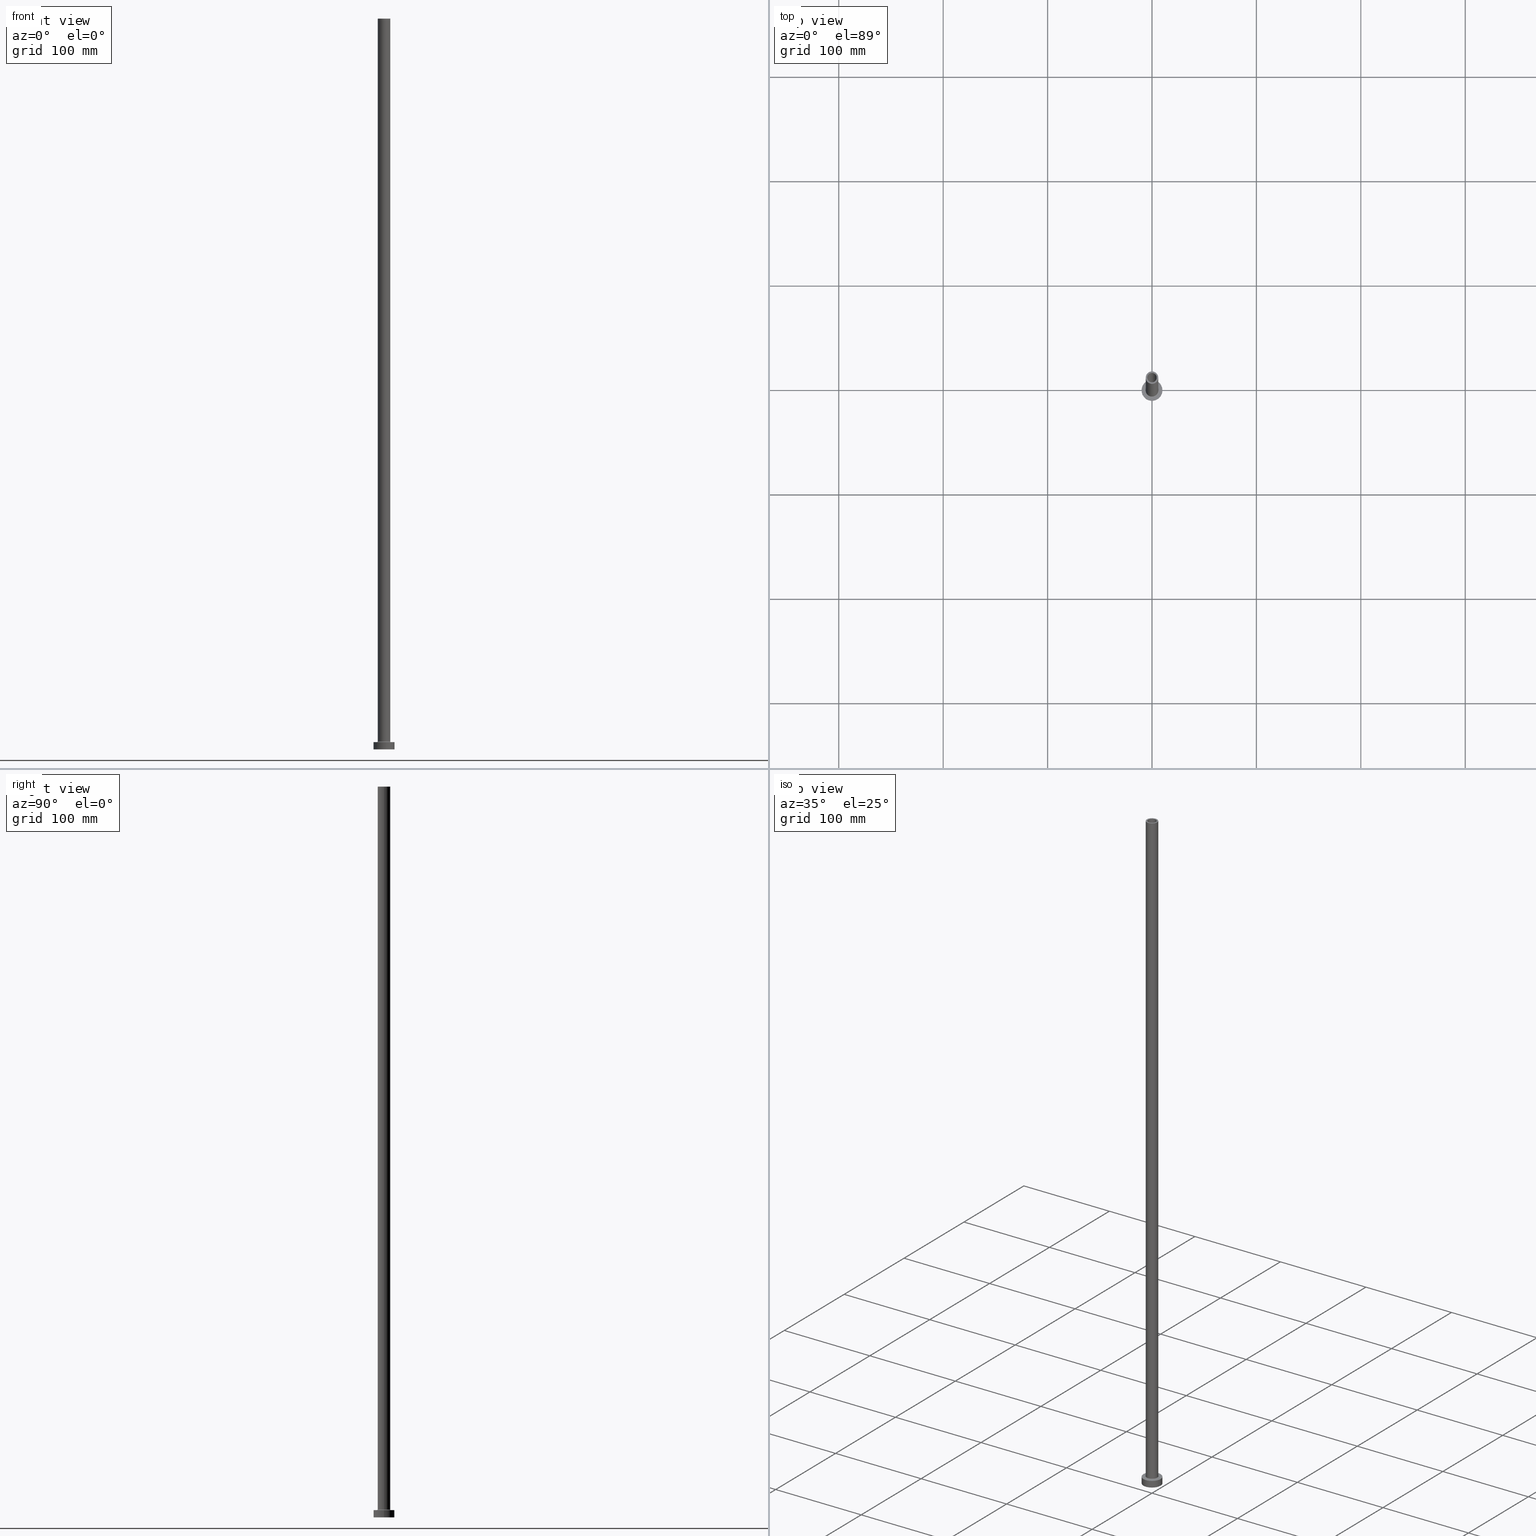
[diagram: canonical four-view strip — front | top / right | iso, engineering-drawing reading convention]
A machine part, canonical four-view strip (front | top / right | iso — engineering-drawing reading convention). The complete STEP part file that produces these views, byte-faithful:
ISO-10303-21;
HEADER;
FILE_DESCRIPTION (( 'STEP AP203' ),
    '1' );
FILE_NAME ('c456.STEP',
    '2023-02-13T10:59:47',
    ( '' ),
    ( '' ),
    'SwSTEP 2.0',
    'SolidWorks 2019',
    '' );
FILE_SCHEMA (( 'CONFIG_CONTROL_DESIGN' ));
ENDSEC;

DATA;
#1 = DIRECTION ( 'NONE',  ( 1.000000000000000000, 0.000000000000000000, 0.000000000000000000 ) ) ;
#2 = CARTESIAN_POINT ( 'NONE',  ( 4.500000000000000000, 5.510910596163088569E-16, 700.0000000000000000 ) ) ;
#3 = DIRECTION ( 'NONE',  ( -0.000000000000000000, -0.000000000000000000, -1.000000000000000000 ) ) ;
#4 = EDGE_CURVE ( 'NONE', #301, #63, #240, .T. ) ;
#5 = AXIS2_PLACEMENT_3D ( 'NONE', #284, #193, #335 ) ;
#6 = LINE ( 'NONE', #119, #61 ) ;
#7 = ORIENTED_EDGE ( 'NONE', *, *, #35, .F. ) ;
#8 = DIRECTION ( 'NONE',  ( 1.000000000000000000, 0.000000000000000000, 0.000000000000000000 ) ) ;
#9 = CARTESIAN_POINT ( 'NONE',  ( 0.000000000000000000, 0.000000000000000000, 654.9999999999998863 ) ) ;
#10 = CARTESIAN_POINT ( 'NONE',  ( 6.700000000000001066, 0.000000000000000000, 7.700000000000040146 ) ) ;
#11 = EDGE_CURVE ( 'NONE', #247, #176, #39, .T. ) ;
#12 = DIRECTION ( 'NONE',  ( 0.000000000000000000, 0.000000000000000000, 1.000000000000000000 ) ) ;
#13 = ORIENTED_EDGE ( 'NONE', *, *, #25, .F. ) ;
#14 = APPROVAL_ROLE ( '' ) ;
#15 = DIRECTION ( 'NONE',  ( 1.000000000000000000, 0.000000000000000000, 0.000000000000000000 ) ) ;
#16 = ORIENTED_EDGE ( 'NONE', *, *, #4, .T. ) ;
#17 = CARTESIAN_POINT ( 'NONE',  ( 6.000000000000000888, 7.347880794884120722E-16, 700.0000000000000000 ) ) ;
#18 = CC_DESIGN_PERSON_AND_ORGANIZATION_ASSIGNMENT ( #455, #67, ( #175 ) ) ;
#19 = AXIS2_PLACEMENT_3D ( 'NONE', #44, #252, #184 ) ;
#20 = CARTESIAN_POINT ( 'NONE',  ( 0.000000000000000000, 0.000000000000000000, 0.000000000000000000 ) ) ;
#21 = ORGANIZATION ( 'NEUR�EN�', 'NEUR�EN�', '' ) ;
#22 = ORIENTED_EDGE ( 'NONE', *, *, #436, .T. ) ;
#23 = ORIENTED_EDGE ( 'NONE', *, *, #308, .T. ) ;
#24 = DATE_TIME_ROLE ( 'creation_date' ) ;
#25 = EDGE_CURVE ( 'NONE', #176, #247, #302, .T. ) ;
#26 = ORIENTED_EDGE ( 'NONE', *, *, #460, .F. ) ;
#27 = APPROVAL_ROLE ( '' ) ;
#28 = CIRCLE ( 'NONE', #225, 6.000000000000000888 ) ;
#29 = ORIENTED_EDGE ( 'NONE', *, *, #153, .T. ) ;
#30 = CC_DESIGN_SECURITY_CLASSIFICATION ( #351, ( #175 ) ) ;
#31 = PERSON_AND_ORGANIZATION ( #55, #21 ) ;
#32 = CARTESIAN_POINT ( 'NONE',  ( 0.000000000000000000, 0.000000000000000000, 654.9999999999998863 ) ) ;
#33 = DIRECTION ( 'NONE',  ( -0.000000000000000000, -0.000000000000000000, -1.000000000000000000 ) ) ;
#34 = LINE ( 'NONE', #259, #257 ) ;
#35 = EDGE_CURVE ( 'NONE', #196, #382, #110, .T. ) ;
#36 = APPLICATION_CONTEXT ( 'configuration controlled 3d designs of mechanical parts and assemblies' ) ;
#37 = DESIGN_CONTEXT ( 'detailed design', #36, 'design' ) ;
#38 = CARTESIAN_POINT ( 'NONE',  ( 0.000000000000000000, 0.000000000000000000, 7.000000000000000000 ) ) ;
#39 = CIRCLE ( 'NONE', #450, 10.00000000000000000 ) ;
#40 = CC_DESIGN_APPROVAL ( #65, ( #94 ) ) ;
#41 = CARTESIAN_POINT ( 'NONE',  ( 0.000000000000000000, 0.000000000000000000, 7.000000000000000000 ) ) ;
#42 = CARTESIAN_POINT ( 'NONE',  ( 4.650000000000000355, 5.694607616035191883E-16, 668.1521861300698220 ) ) ;
#43 = UNCERTAINTY_MEASURE_WITH_UNIT (LENGTH_MEASURE( 1.000000000000000082E-05 ), #131, 'distance_accuracy_value', 'NONE');
#44 = CARTESIAN_POINT ( 'NONE',  ( 0.000000000000000000, 0.000000000000000000, 7.700000000000040146 ) ) ;
#45 = EDGE_CURVE ( 'NONE', #239, #231, #367, .T. ) ;
#46 = CIRCLE ( 'NONE', #118, 6.000000000000000888 ) ;
#47 = FACE_OUTER_BOUND ( 'NONE', #81, .T. ) ;
#48 = ORIENTED_EDGE ( 'NONE', *, *, #288, .T. ) ;
#49 = PERSON_AND_ORGANIZATION ( #55, #21 ) ;
#50 = CARTESIAN_POINT ( 'NONE',  ( 6.000000000000000888, 7.347880794884120722E-16, 7.700000000000040146 ) ) ;
#51 = ADVANCED_FACE ( 'NONE', ( #187, #393 ), #395, .F. ) ;
#52 = ORIENTED_EDGE ( 'NONE', *, *, #421, .F. ) ;
#53 = APPLICATION_PROTOCOL_DEFINITION ( 'international standard', 'config_control_design', 1994, #36 ) ;
#54 = CIRCLE ( 'NONE', #389, 6.000000000000000888 ) ;
#55 = PERSON ( 'NEUR�EN�', 'NEUR�EN�', 'NEUR�EN�', ('NEUR�EN�'), ('NEUR�EN�'), ('NEUR�EN�') ) ;
#56 = EDGE_CURVE ( 'NONE', #268, #173, #72, .T. ) ;
#57 = CARTESIAN_POINT ( 'NONE',  ( 0.000000000000000000, 0.000000000000000000, 7.000000000000000000 ) ) ;
#58 = CARTESIAN_POINT ( 'NONE',  ( 0.000000000000000000, 0.000000000000000000, 700.0000000000000000 ) ) ;
#59 = VERTEX_POINT ( 'NONE', #394 ) ;
#60 = CYLINDRICAL_SURFACE ( 'NONE', #183, 4.500000000000000000 ) ;
#61 = VECTOR ( 'NONE', #188, 1000.000000000000000 ) ;
#62 = ORIENTED_EDGE ( 'NONE', *, *, #177, .F. ) ;
#63 = VERTEX_POINT ( 'NONE', #365 ) ;
#64 = APPROVAL_DATE_TIME ( #384, #65 ) ;
#65 = APPROVAL ( #441, 'NEUR�EN�' ) ;
#66 = ORIENTED_EDGE ( 'NONE', *, *, #273, .F. ) ;
#67 = PERSON_AND_ORGANIZATION_ROLE ( 'creator' ) ;
#68 = AXIS2_PLACEMENT_3D ( 'NONE', #428, #115, #255 ) ;
#69 = DIRECTION ( 'NONE',  ( -0.000000000000000000, -0.000000000000000000, -1.000000000000000000 ) ) ;
#70 = PERSON_AND_ORGANIZATION_ROLE ( 'classification_officer' ) ;
#71 = CARTESIAN_POINT ( 'NONE',  ( 0.000000000000000000, 0.000000000000000000, 7.000000000000000000 ) ) ;
#72 = LINE ( 'NONE', #76, #167 ) ;
#73 = EDGE_CURVE ( 'NONE', #245, #235, #93, .T. ) ;
#74 = DIRECTION ( 'NONE',  ( 0.000000000000000000, 0.000000000000000000, 1.000000000000000000 ) ) ;
#75 = DIRECTION ( 'NONE',  ( 1.000000000000000000, 0.000000000000000000, 0.000000000000000000 ) ) ;
#76 = CARTESIAN_POINT ( 'NONE',  ( -4.500000000000000000, 0.000000000000000000, 700.0000000000000000 ) ) ;
#77 = AXIS2_PLACEMENT_3D ( 'NONE', #121, #293, #461 ) ;
#78 = CARTESIAN_POINT ( 'NONE',  ( -10.00000000000000000, 0.000000000000000000, 7.000000000000000000 ) ) ;
#79 = CARTESIAN_POINT ( 'NONE',  ( 0.000000000000000000, 0.000000000000000000, 7.000000000000000000 ) ) ;
#80 = CARTESIAN_POINT ( 'NONE',  ( -4.650000000000000355, 0.000000000000000000, 654.9999999999998863 ) ) ;
#81 = EDGE_LOOP ( 'NONE', ( #369, #356, #144, #320 ) ) ;
#82 = AXIS2_PLACEMENT_3D ( 'NONE', #263, #398, #332 ) ;
#83 = CIRCLE ( 'NONE', #82, 4.500000000000000000 ) ;
#84 = DIRECTION ( 'NONE',  ( 0.000000000000000000, 0.000000000000000000, 1.000000000000000000 ) ) ;
#85 = APPROVAL_PERSON_ORGANIZATION ( #453, #244, #27 ) ;
#86 = EDGE_LOOP ( 'NONE', ( #213, #314 ) ) ;
#87 = EDGE_CURVE ( 'NONE', #349, #353, #424, .T. ) ;
#88 = DIRECTION ( 'NONE',  ( 1.000000000000000000, 0.000000000000000000, -0.000000000000000000 ) ) ;
#89 = CARTESIAN_POINT ( 'NONE',  ( 0.000000000000000000, 0.000000000000000000, 700.0000000000000000 ) ) ;
#90 = PERSON_AND_ORGANIZATION_ROLE ( 'design_owner' ) ;
#91 = EDGE_LOOP ( 'NONE', ( #106, #226 ) ) ;
#92 = FACE_BOUND ( 'NONE', #243, .T. ) ;
#93 = CIRCLE ( 'NONE', #432, 6.700000000000001066 ) ;
#94 = PRODUCT_DEFINITION ( 'NEZN�M�', '', #175, #37 ) ;
#95 = FACE_OUTER_BOUND ( 'NONE', #200, .T. ) ;
#96 = ORIENTED_EDGE ( 'NONE', *, *, #45, .F. ) ;
#97 = APPROVAL_DATE_TIME ( #197, #138 ) ;
#98 = PLANE ( 'NONE',  #286 ) ;
#99 = ORIENTED_EDGE ( 'NONE', *, *, #170, .T. ) ;
#100 = PLANE ( 'NONE',  #227 ) ;
#101 = DIRECTION ( 'NONE',  ( -0.000000000000000000, -0.000000000000000000, -1.000000000000000000 ) ) ;
#102 = EDGE_LOOP ( 'NONE', ( #16, #99 ) ) ;
#103 = AXIS2_PLACEMENT_3D ( 'NONE', #249, #285, #209 ) ;
#104 = LOCAL_TIME ( 11, 59, 47.00000000000000000, #192 ) ;
#105 = ORIENTED_EDGE ( 'NONE', *, *, #73, .T. ) ;
#106 = ORIENTED_EDGE ( 'NONE', *, *, #429, .T. ) ;
#107 = EDGE_LOOP ( 'NONE', ( #422, #206 ) ) ;
#108 = SECURITY_CLASSIFICATION_LEVEL ( 'unclassified' ) ;
#109 = ADVANCED_FACE ( 'NONE', ( #253 ), #218, .T. ) ;
#110 = CIRCLE ( 'NONE', #19, 6.000000000000000888 ) ;
#111 = DIRECTION ( 'NONE',  ( 0.000000000000000000, 0.000000000000000000, 1.000000000000000000 ) ) ;
#112 = AXIS2_PLACEMENT_3D ( 'NONE', #267, #407, #161 ) ;
#113 = DIRECTION ( 'NONE',  ( 0.000000000000000000, 0.000000000000000000, 1.000000000000000000 ) ) ;
#114 = DIRECTION ( 'NONE',  ( 1.000000000000000000, 0.000000000000000000, 0.000000000000000000 ) ) ;
#115 = DIRECTION ( 'NONE',  ( -0.000000000000000000, -0.000000000000000000, -1.000000000000000000 ) ) ;
#116 = DIRECTION ( 'NONE',  ( -1.000000000000000000, 1.224646799147353454E-16, 0.000000000000000000 ) ) ;
#117 = CARTESIAN_POINT ( 'NONE',  ( 0.000000000000000000, 0.000000000000000000, 654.9999999999998863 ) ) ;
#118 = AXIS2_PLACEMENT_3D ( 'NONE', #290, #430, #8 ) ;
#119 = CARTESIAN_POINT ( 'NONE',  ( -10.00000000000000000, 0.000000000000000000, 7.000000000000000000 ) ) ;
#120 = PRODUCT ( 'c456', 'c456', '', ( #339 ) ) ;
#121 = CARTESIAN_POINT ( 'NONE',  ( 0.000000000000000000, 0.000000000000000000, 654.9999999999998863 ) ) ;
#122 = ORIENTED_EDGE ( 'NONE', *, *, #323, .F. ) ;
#123 = CARTESIAN_POINT ( 'NONE',  ( -4.650000000000000355, 0.000000000000000000, 668.1521861300698220 ) ) ;
#124 = EDGE_CURVE ( 'NONE', #139, #196, #34, .T. ) ;
#125 = TOROIDAL_SURFACE ( 'NONE', #404, 6.700000000000001066, 0.6999999999999999556 ) ;
#126 = PERSON_AND_ORGANIZATION ( #55, #21 ) ;
#127 = APPROVAL_ROLE ( '' ) ;
#128 = EDGE_CURVE ( 'NONE', #447, #173, #250, .T. ) ;
#129 = DIRECTION ( 'NONE',  ( -1.000000000000000000, 0.000000000000000000, 0.000000000000000000 ) ) ;
#130 = EDGE_LOOP ( 'NONE', ( #29, #316, #420, #163 ) ) ;
#131 =( LENGTH_UNIT ( ) NAMED_UNIT ( * ) SI_UNIT ( .MILLI., .METRE. ) );
#132 = AXIS2_PLACEMENT_3D ( 'NONE', #20, #101, #205 ) ;
#133 = DIRECTION ( 'NONE',  ( 1.000000000000000000, 0.000000000000000000, 0.000000000000000000 ) ) ;
#134 = ORIENTED_EDGE ( 'NONE', *, *, #460, .T. ) ;
#135 = DIRECTION ( 'NONE',  ( -1.000000000000000000, 0.000000000000000000, 0.000000000000000000 ) ) ;
#136 = ORIENTED_EDGE ( 'NONE', *, *, #212, .T. ) ;
#137 = COORDINATED_UNIVERSAL_TIME_OFFSET ( 1, 0, .AHEAD. ) ;
#138 = APPROVAL ( #338, 'NEUR�EN�' ) ;
#139 = VERTEX_POINT ( 'NONE', #152 ) ;
#140 = CLOSED_SHELL ( 'NONE', ( #294, #341, #230, #186, #417, #109, #237, #445, #254, #223, #371, #266, #51, #397 ) ) ;
#141 = AXIS2_PLACEMENT_3D ( 'NONE', #9, #201, #15 ) ;
#142 = EDGE_LOOP ( 'NONE', ( #306, #345, #134, #159 ) ) ;
#143 = COORDINATED_UNIVERSAL_TIME_OFFSET ( 1, 0, .AHEAD. ) ;
#144 = ORIENTED_EDGE ( 'NONE', *, *, #56, .T. ) ;
#145 = CC_DESIGN_DATE_AND_TIME_ASSIGNMENT ( #402, #370, ( #351 ) ) ;
#146 = CARTESIAN_POINT ( 'NONE',  ( -6.000000000000000888, 0.000000000000000000, 7.700000000000040146 ) ) ;
#147 = FACE_BOUND ( 'NONE', #107, .T. ) ;
#148 = CARTESIAN_POINT ( 'NONE',  ( -4.500000000000000000, 0.000000000000000000, 654.9999999999998863 ) ) ;
#149 = LOCAL_TIME ( 11, 59, 47.00000000000000000, #137 ) ;
#150 = DIRECTION ( 'NONE',  ( 1.000000000000000000, 0.000000000000000000, 0.000000000000000000 ) ) ;
#151 = CYLINDRICAL_SURFACE ( 'NONE', #375, 4.500000000000000000 ) ;
#152 = CARTESIAN_POINT ( 'NONE',  ( -6.000000000000000888, 0.000000000000000000, 700.0000000000000000 ) ) ;
#153 = EDGE_CURVE ( 'NONE', #353, #349, #220, .T. ) ;
#154 = DIRECTION ( 'NONE',  ( 0.000000000000000000, 0.000000000000000000, -1.000000000000000000 ) ) ;
#155 = DIRECTION ( 'NONE',  ( 0.000000000000000000, 0.000000000000000000, 1.000000000000000000 ) ) ;
#156 = AXIS2_PLACEMENT_3D ( 'NONE', #325, #360, #427 ) ;
#157 = LOCAL_TIME ( 11, 59, 47.00000000000000000, #354 ) ;
#158 = FACE_OUTER_BOUND ( 'NONE', #142, .T. ) ;
#159 = ORIENTED_EDGE ( 'NONE', *, *, #73, .F. ) ;
#160 = CARTESIAN_POINT ( 'NONE',  ( -6.700000000000001066, 8.205133554287267548E-16, 7.700000000000040146 ) ) ;
#161 = DIRECTION ( 'NONE',  ( -1.000000000000000000, 0.000000000000000000, 0.000000000000000000 ) ) ;
#162 =( NAMED_UNIT ( * ) SI_UNIT ( $, .STERADIAN. ) SOLID_ANGLE_UNIT ( ) );
#163 = ORIENTED_EDGE ( 'NONE', *, *, #317, .F. ) ;
#164 = CARTESIAN_POINT ( 'NONE',  ( 4.500000000000000000, 5.510910596163088569E-16, 654.9999999999998863 ) ) ;
#165 = CARTESIAN_POINT ( 'NONE',  ( -4.650000000000000355, 0.000000000000000000, 0.000000000000000000 ) ) ;
#166 = ORIENTED_EDGE ( 'NONE', *, *, #436, .F. ) ;
#167 = VECTOR ( 'NONE', #221, 1000.000000000000000 ) ;
#168 = DIRECTION ( 'NONE',  ( 0.000000000000000000, 0.000000000000000000, -1.000000000000000000 ) ) ;
#169 = ORIENTED_EDGE ( 'NONE', *, *, #124, .F. ) ;
#170 = EDGE_CURVE ( 'NONE', #63, #301, #190, .T. ) ;
#171 = ORIENTED_EDGE ( 'NONE', *, *, #261, .T. ) ;
#172 = PERSON_AND_ORGANIZATION_ROLE ( 'creator' ) ;
#173 = VERTEX_POINT ( 'NONE', #148 ) ;
#174 = AXIS2_PLACEMENT_3D ( 'NONE', #160, #292, #116 ) ;
#175 = PRODUCT_DEFINITION_FORMATION_WITH_SPECIFIED_SOURCE ( 'LIBOVOLN�', '', #120, .NOT_KNOWN. ) ;
#176 = VERTEX_POINT ( 'NONE', #434 ) ;
#177 = EDGE_CURVE ( 'NONE', #235, #245, #319, .T. ) ;
#178 = CARTESIAN_POINT ( 'NONE',  ( 0.000000000000000000, 0.000000000000000000, 7.700000000000040146 ) ) ;
#179 = DATE_AND_TIME ( #248, #157 ) ;
#180 = FACE_OUTER_BOUND ( 'NONE', #310, .T. ) ;
#181 = DIRECTION ( 'NONE',  ( 0.000000000000000000, 0.000000000000000000, 1.000000000000000000 ) ) ;
#182 = CARTESIAN_POINT ( 'NONE',  ( 6.700000000000001066, 0.000000000000000000, 7.000000000000020428 ) ) ;
#183 = AXIS2_PLACEMENT_3D ( 'NONE', #304, #346, #135 ) ;
#184 = DIRECTION ( 'NONE',  ( 1.000000000000000000, 0.000000000000000000, 0.000000000000000000 ) ) ;
#185 = DIRECTION ( 'NONE',  ( 0.000000000000000000, 0.000000000000000000, -1.000000000000000000 ) ) ;
#186 = ADVANCED_FACE ( 'NONE', ( #216 ), #291, .T. ) ;
#187 = FACE_BOUND ( 'NONE', #91, .T. ) ;
#188 = DIRECTION ( 'NONE',  ( -0.000000000000000000, -0.000000000000000000, -1.000000000000000000 ) ) ;
#189 = CARTESIAN_POINT ( 'NONE',  ( 0.000000000000000000, 0.000000000000000000, 7.000000000000000000 ) ) ;
#190 = CIRCLE ( 'NONE', #439, 10.00000000000000000 ) ;
#191 = EDGE_CURVE ( 'NONE', #382, #196, #28, .T. ) ;
#192 = COORDINATED_UNIVERSAL_TIME_OFFSET ( 1, 0, .AHEAD. ) ;
#193 = DIRECTION ( 'NONE',  ( 0.000000000000000000, 0.000000000000000000, 1.000000000000000000 ) ) ;
#194 = APPLICATION_PROTOCOL_DEFINITION ( 'international standard', 'config_control_design', 1994, #278 ) ;
#195 = PRODUCT_RELATED_PRODUCT_CATEGORY ( 'detail', '', ( #120 ) ) ;
#196 = VERTEX_POINT ( 'NONE', #146 ) ;
#197 = DATE_AND_TIME ( #373, #104 ) ;
#198 = AXIS2_PLACEMENT_3D ( 'NONE', #117, #155, #114 ) ;
#199 =( NAMED_UNIT ( * ) PLANE_ANGLE_UNIT ( ) SI_UNIT ( $, .RADIAN. ) );
#200 = EDGE_LOOP ( 'NONE', ( #7, #23, #62, #26 ) ) ;
#201 = DIRECTION ( 'NONE',  ( 0.000000000000000000, 0.000000000000000000, 1.000000000000000000 ) ) ;
#202 = PLANE ( 'NONE',  #103 ) ;
#203 = DIRECTION ( 'NONE',  ( 0.000000000000000000, 0.000000000000000000, 1.000000000000000000 ) ) ;
#204 = FACE_OUTER_BOUND ( 'NONE', #408, .T. ) ;
#205 = DIRECTION ( 'NONE',  ( 1.000000000000000000, 0.000000000000000000, 0.000000000000000000 ) ) ;
#206 = ORIENTED_EDGE ( 'NONE', *, *, #208, .F. ) ;
#207 = AXIS2_PLACEMENT_3D ( 'NONE', #32, #181, #1 ) ;
#208 = EDGE_CURVE ( 'NONE', #357, #268, #214, .T. ) ;
#209 = DIRECTION ( 'NONE',  ( 1.000000000000000000, 0.000000000000000000, -0.000000000000000000 ) ) ;
#210 = ORIENTED_EDGE ( 'NONE', *, *, #191, .T. ) ;
#211 = ORIENTED_EDGE ( 'NONE', *, *, #11, .T. ) ;
#212 = EDGE_CURVE ( 'NONE', #59, #139, #54, .T. ) ;
#213 = ORIENTED_EDGE ( 'NONE', *, *, #153, .F. ) ;
#214 = CIRCLE ( 'NONE', #5, 4.500000000000000000 ) ;
#215 = CC_DESIGN_APPROVAL ( #244, ( #175 ) ) ;
#216 = FACE_OUTER_BOUND ( 'NONE', #419, .T. ) ;
#217 = DIRECTION ( 'NONE',  ( 1.000000000000000000, 0.000000000000000000, 0.000000000000000000 ) ) ;
#218 = CYLINDRICAL_SURFACE ( 'NONE', #232, 10.00000000000000000 ) ;
#219 = CC_DESIGN_PERSON_AND_ORGANIZATION_ASSIGNMENT ( #448, #277, ( #175 ) ) ;
#220 = CIRCLE ( 'NONE', #77, 4.650000000000000355 ) ;
#221 = DIRECTION ( 'NONE',  ( 0.000000000000000000, 0.000000000000000000, -1.000000000000000000 ) ) ;
#222 = CARTESIAN_POINT ( 'NONE',  ( 4.500000000000000000, 5.510910596163088569E-16, 700.0000000000000000 ) ) ;
#223 = ADVANCED_FACE ( 'NONE', ( #147, #414 ), #202, .T. ) ;
#224 = LINE ( 'NONE', #2, #348 ) ;
#225 = AXIS2_PLACEMENT_3D ( 'NONE', #178, #321, #454 ) ;
#226 = ORIENTED_EDGE ( 'NONE', *, *, #128, .T. ) ;
#227 = AXIS2_PLACEMENT_3D ( 'NONE', #416, #12, #88 ) ;
#228 = DIRECTION ( 'NONE',  ( -1.000000000000000000, 0.000000000000000000, 0.000000000000000000 ) ) ;
#229 = CARTESIAN_POINT ( 'NONE',  ( 0.000000000000000000, 0.000000000000000000, 0.000000000000000000 ) ) ;
#230 = ADVANCED_FACE ( 'NONE', ( #95 ), #340, .F. ) ;
#231 = VERTEX_POINT ( 'NONE', #165 ) ;
#232 = AXIS2_PLACEMENT_3D ( 'NONE', #41, #362, #361 ) ;
#233 = APPROVAL_PERSON_ORGANIZATION ( #49, #138, #14 ) ;
#234 = FACE_OUTER_BOUND ( 'NONE', #383, .T. ) ;
#235 = VERTEX_POINT ( 'NONE', #182 ) ;
#236 = CARTESIAN_POINT ( 'NONE',  ( -10.00000000000000000, 0.000000000000000000, 0.000000000000000000 ) ) ;
#237 = ADVANCED_FACE ( 'NONE', ( #392, #380 ), #98, .T. ) ;
#238 = DIRECTION ( 'NONE',  ( 1.000000000000000000, 0.000000000000000000, 0.000000000000000000 ) ) ;
#239 = VERTEX_POINT ( 'NONE', #456 ) ;
#240 = CIRCLE ( 'NONE', #381, 10.00000000000000000 ) ;
#241 = CALENDAR_DATE ( 2023, 13, 2 ) ;
#242 = LOCAL_TIME ( 11, 59, 47.00000000000000000, #269 ) ;
#243 = EDGE_LOOP ( 'NONE', ( #449, #96 ) ) ;
#244 = APPROVAL ( #423, 'NEUR�EN�' ) ;
#245 = VERTEX_POINT ( 'NONE', #352 ) ;
#246 = CALENDAR_DATE ( 2023, 13, 2 ) ;
#247 = VERTEX_POINT ( 'NONE', #236 ) ;
#248 = CALENDAR_DATE ( 2023, 13, 2 ) ;
#249 = CARTESIAN_POINT ( 'NONE',  ( 0.000000000000000000, 0.000000000000000000, 700.0000000000000000 ) ) ;
#250 = CIRCLE ( 'NONE', #207, 4.500000000000000000 ) ;
#251 = AXIS2_PLACEMENT_3D ( 'NONE', #10, #307, #438 ) ;
#252 = DIRECTION ( 'NONE',  ( 0.000000000000000000, 0.000000000000000000, 1.000000000000000000 ) ) ;
#253 = FACE_OUTER_BOUND ( 'NONE', #336, .T. ) ;
#254 = ADVANCED_FACE ( 'NONE', ( #378 ), #446, .T. ) ;
#255 = DIRECTION ( 'NONE',  ( -1.000000000000000000, 0.000000000000000000, 0.000000000000000000 ) ) ;
#256 = DIRECTION ( 'NONE',  ( 0.000000000000000000, 0.000000000000000000, -1.000000000000000000 ) ) ;
#257 = VECTOR ( 'NONE', #399, 1000.000000000000000 ) ;
#258 = CIRCLE ( 'NONE', #251, 0.7000000000000000666 ) ;
#259 = CARTESIAN_POINT ( 'NONE',  ( -6.000000000000000888, 0.000000000000000000, 700.0000000000000000 ) ) ;
#260 = CARTESIAN_POINT ( 'NONE',  ( 0.000000000000000000, 0.000000000000000000, 668.1521861300698220 ) ) ;
#261 = EDGE_CURVE ( 'NONE', #231, #239, #280, .T. ) ;
#262 = CYLINDRICAL_SURFACE ( 'NONE', #326, 4.650000000000000355 ) ;
#263 = CARTESIAN_POINT ( 'NONE',  ( 0.000000000000000000, 0.000000000000000000, 700.0000000000000000 ) ) ;
#264 = CYLINDRICAL_SURFACE ( 'NONE', #112, 10.00000000000000000 ) ;
#265 = ORIENTED_EDGE ( 'NONE', *, *, #177, .T. ) ;
#266 = ADVANCED_FACE ( 'NONE', ( #180 ), #270, .F. ) ;
#267 = CARTESIAN_POINT ( 'NONE',  ( 0.000000000000000000, 0.000000000000000000, 7.000000000000000000 ) ) ;
#268 = VERTEX_POINT ( 'NONE', #426 ) ;
#269 = COORDINATED_UNIVERSAL_TIME_OFFSET ( 1, 0, .AHEAD. ) ;
#270 = CYLINDRICAL_SURFACE ( 'NONE', #442, 4.650000000000000355 ) ;
#271 = ORIENTED_EDGE ( 'NONE', *, *, #331, .T. ) ;
#272 = AXIS2_PLACEMENT_3D ( 'NONE', #344, #113, #315 ) ;
#273 = EDGE_CURVE ( 'NONE', #349, #239, #363, .T. ) ;
#274 = EDGE_LOOP ( 'NONE', ( #271, #342, #276, #405 ) ) ;
#275 = DIRECTION ( 'NONE',  ( -0.000000000000000000, -0.000000000000000000, -1.000000000000000000 ) ) ;
#276 = ORIENTED_EDGE ( 'NONE', *, *, #429, .F. ) ;
#277 = PERSON_AND_ORGANIZATION_ROLE ( 'design_supplier' ) ;
#278 = APPLICATION_CONTEXT ( 'configuration controlled 3d designs of mechanical parts and assemblies' ) ;
#279 = ORIENTED_EDGE ( 'NONE', *, *, #11, .F. ) ;
#280 = CIRCLE ( 'NONE', #132, 4.650000000000000355 ) ;
#281 = CC_DESIGN_APPROVAL ( #138, ( #351 ) ) ;
#282 = ORIENTED_EDGE ( 'NONE', *, *, #170, .F. ) ;
#283 = ORIENTED_EDGE ( 'NONE', *, *, #35, .T. ) ;
#284 = CARTESIAN_POINT ( 'NONE',  ( 0.000000000000000000, 0.000000000000000000, 700.0000000000000000 ) ) ;
#285 = DIRECTION ( 'NONE',  ( 0.000000000000000000, 0.000000000000000000, 1.000000000000000000 ) ) ;
#286 = AXIS2_PLACEMENT_3D ( 'NONE', #71, #309, #327 ) ;
#287 = APPROVAL_PERSON_ORGANIZATION ( #305, #65, #127 ) ;
#288 = EDGE_CURVE ( 'NONE', #139, #59, #46, .T. ) ;
#289 = CARTESIAN_POINT ( 'NONE',  ( 0.000000000000000000, 0.000000000000000000, 0.000000000000000000 ) ) ;
#290 = CARTESIAN_POINT ( 'NONE',  ( 0.000000000000000000, 0.000000000000000000, 700.0000000000000000 ) ) ;
#291 = CYLINDRICAL_SURFACE ( 'NONE', #68, 6.000000000000000888 ) ;
#292 = DIRECTION ( 'NONE',  ( 1.224646799147353207E-16, 1.000000000000000000, -0.000000000000000000 ) ) ;
#293 = DIRECTION ( 'NONE',  ( 0.000000000000000000, 0.000000000000000000, 1.000000000000000000 ) ) ;
#294 = ADVANCED_FACE ( 'NONE', ( #329 ), #151, .F. ) ;
#295 = FACE_OUTER_BOUND ( 'NONE', #130, .T. ) ;
#296 = AXIS2_PLACEMENT_3D ( 'NONE', #431, #111, #334 ) ;
#297 = DIRECTION ( 'NONE',  ( 1.000000000000000000, 0.000000000000000000, 0.000000000000000000 ) ) ;
#298 = LINE ( 'NONE', #123, #312 ) ;
#299 = ORIENTED_EDGE ( 'NONE', *, *, #124, .T. ) ;
#300 = DIRECTION ( 'NONE',  ( 0.000000000000000000, 0.000000000000000000, -1.000000000000000000 ) ) ;
#301 = VERTEX_POINT ( 'NONE', #78 ) ;
#302 = CIRCLE ( 'NONE', #296, 10.00000000000000000 ) ;
#303 = CC_DESIGN_DATE_AND_TIME_ASSIGNMENT ( #179, #24, ( #94 ) ) ;
#304 = CARTESIAN_POINT ( 'NONE',  ( 0.000000000000000000, 0.000000000000000000, 700.0000000000000000 ) ) ;
#305 = PERSON_AND_ORGANIZATION ( #55, #21 ) ;
#306 = ORIENTED_EDGE ( 'NONE', *, *, #308, .F. ) ;
#307 = DIRECTION ( 'NONE',  ( 0.000000000000000000, -1.000000000000000000, 0.000000000000000000 ) ) ;
#308 = EDGE_CURVE ( 'NONE', #196, #245, #350, .T. ) ;
#309 = DIRECTION ( 'NONE',  ( 0.000000000000000000, 0.000000000000000000, 1.000000000000000000 ) ) ;
#310 = EDGE_LOOP ( 'NONE', ( #66, #318, #452, #171 ) ) ;
#311 = CALENDAR_DATE ( 2023, 13, 2 ) ;
#312 = VECTOR ( 'NONE', #256, 1000.000000000000000 ) ;
#313 = VECTOR ( 'NONE', #376, 1000.000000000000000 ) ;
#314 = ORIENTED_EDGE ( 'NONE', *, *, #87, .F. ) ;
#315 = DIRECTION ( 'NONE',  ( 1.000000000000000000, 0.000000000000000000, 0.000000000000000000 ) ) ;
#316 = ORIENTED_EDGE ( 'NONE', *, *, #273, .T. ) ;
#317 = EDGE_CURVE ( 'NONE', #353, #231, #298, .T. ) ;
#318 = ORIENTED_EDGE ( 'NONE', *, *, #87, .T. ) ;
#319 = CIRCLE ( 'NONE', #358, 6.700000000000001066 ) ;
#320 = ORIENTED_EDGE ( 'NONE', *, *, #128, .F. ) ;
#321 = DIRECTION ( 'NONE',  ( 0.000000000000000000, 0.000000000000000000, 1.000000000000000000 ) ) ;
#322 = APPROVAL_DATE_TIME ( #386, #244 ) ;
#323 = EDGE_CURVE ( 'NONE', #301, #247, #6, .T. ) ;
#324 = DIRECTION ( 'NONE',  ( -1.000000000000000000, 0.000000000000000000, 0.000000000000000000 ) ) ;
#325 = CARTESIAN_POINT ( 'NONE',  ( 0.000000000000000000, 0.000000000000000000, 654.9999999999998863 ) ) ;
#326 = AXIS2_PLACEMENT_3D ( 'NONE', #260, #300, #400 ) ;
#327 = DIRECTION ( 'NONE',  ( 1.000000000000000000, 0.000000000000000000, -0.000000000000000000 ) ) ;
#328 = DIRECTION ( 'NONE',  ( 1.000000000000000000, 0.000000000000000000, 0.000000000000000000 ) ) ;
#329 = FACE_OUTER_BOUND ( 'NONE', #274, .T. ) ;
#330 = DIRECTION ( 'NONE',  ( 0.000000000000000000, 0.000000000000000000, 1.000000000000000000 ) ) ;
#331 = EDGE_CURVE ( 'NONE', #268, #357, #83, .T. ) ;
#332 = DIRECTION ( 'NONE',  ( 1.000000000000000000, 0.000000000000000000, 0.000000000000000000 ) ) ;
#333 = PRODUCT_DEFINITION_SHAPE ( 'NONE', 'NONE',  #94 ) ;
#334 = DIRECTION ( 'NONE',  ( 1.000000000000000000, 0.000000000000000000, 0.000000000000000000 ) ) ;
#335 = DIRECTION ( 'NONE',  ( 1.000000000000000000, 0.000000000000000000, 0.000000000000000000 ) ) ;
#336 = EDGE_LOOP ( 'NONE', ( #52, #451, #415, #211 ) ) ;
#337 = EDGE_CURVE ( 'NONE', #357, #447, #224, .T. ) ;
#338 = APPROVAL_STATUS ( 'not_yet_approved' ) ;
#339 = MECHANICAL_CONTEXT ( 'NONE', #278, 'mechanical' ) ;
#340 = TOROIDAL_SURFACE ( 'NONE', #272, 6.700000000000001066, 0.6999999999999999556 ) ;
#341 = ADVANCED_FACE ( 'NONE', ( #295 ), #262, .F. ) ;
#342 = ORIENTED_EDGE ( 'NONE', *, *, #337, .T. ) ;
#343 = LINE ( 'NONE', #411, #313 ) ;
#344 = CARTESIAN_POINT ( 'NONE',  ( 0.000000000000000000, 0.000000000000000000, 7.700000000000040146 ) ) ;
#345 = ORIENTED_EDGE ( 'NONE', *, *, #191, .F. ) ;
#346 = DIRECTION ( 'NONE',  ( 0.000000000000000000, 0.000000000000000000, -1.000000000000000000 ) ) ;
#347 = CARTESIAN_POINT ( 'NONE',  ( 0.000000000000000000, 0.000000000000000000, 668.1521861300698220 ) ) ;
#348 = VECTOR ( 'NONE', #154, 1000.000000000000000 ) ;
#349 = VERTEX_POINT ( 'NONE', #435 ) ;
#350 = CIRCLE ( 'NONE', #174, 0.7000000000000000666 ) ;
#351 = SECURITY_CLASSIFICATION ( '', '', #108 ) ;
#352 = CARTESIAN_POINT ( 'NONE',  ( -6.700000000000001066, 8.205133554287267548E-16, 7.000000000000020428 ) ) ;
#353 = VERTEX_POINT ( 'NONE', #80 ) ;
#354 = COORDINATED_UNIVERSAL_TIME_OFFSET ( 1, 0, .AHEAD. ) ;
#355 = CC_DESIGN_PERSON_AND_ORGANIZATION_ASSIGNMENT ( #126, #90, ( #120 ) ) ;
#356 = ORIENTED_EDGE ( 'NONE', *, *, #208, .T. ) ;
#357 = VERTEX_POINT ( 'NONE', #222 ) ;
#358 = AXIS2_PLACEMENT_3D ( 'NONE', #38, #69, #150 ) ;
#359 =( GEOMETRIC_REPRESENTATION_CONTEXT ( 3 ) GLOBAL_UNCERTAINTY_ASSIGNED_CONTEXT ( ( #43 ) ) GLOBAL_UNIT_ASSIGNED_CONTEXT ( ( #131, #199, #162 ) ) REPRESENTATION_CONTEXT ( 'NONE', 'WORKASPACE' ) );
#360 = DIRECTION ( 'NONE',  ( 0.000000000000000000, 0.000000000000000000, 1.000000000000000000 ) ) ;
#361 = DIRECTION ( 'NONE',  ( -1.000000000000000000, 0.000000000000000000, 0.000000000000000000 ) ) ;
#362 = DIRECTION ( 'NONE',  ( -0.000000000000000000, -0.000000000000000000, -1.000000000000000000 ) ) ;
#363 = LINE ( 'NONE', #42, #396 ) ;
#364 = DIRECTION ( 'NONE',  ( -0.000000000000000000, -0.000000000000000000, -1.000000000000000000 ) ) ;
#365 = CARTESIAN_POINT ( 'NONE',  ( 10.00000000000000000, 1.224646799147353256E-15, 7.000000000000000000 ) ) ;
#366 = DIRECTION ( 'NONE',  ( 0.000000000000000000, 0.000000000000000000, -1.000000000000000000 ) ) ;
#367 = CIRCLE ( 'NONE', #412, 4.650000000000000355 ) ;
#368 = ADVANCED_BREP_SHAPE_REPRESENTATION ( 'c456', ( #391, #413 ), #359 ) ;
#369 = ORIENTED_EDGE ( 'NONE', *, *, #337, .F. ) ;
#370 = DATE_TIME_ROLE ( 'classification_date' ) ;
#371 = ADVANCED_FACE ( 'NONE', ( #158 ), #125, .F. ) ;
#372 = DIRECTION ( 'NONE',  ( 1.000000000000000000, 0.000000000000000000, 0.000000000000000000 ) ) ;
#373 = CALENDAR_DATE ( 2023, 13, 2 ) ;
#374 = ORIENTED_EDGE ( 'NONE', *, *, #288, .F. ) ;
#375 = AXIS2_PLACEMENT_3D ( 'NONE', #437, #366, #228 ) ;
#376 = DIRECTION ( 'NONE',  ( -0.000000000000000000, -0.000000000000000000, -1.000000000000000000 ) ) ;
#377 = LINE ( 'NONE', #17, #433 ) ;
#378 = FACE_OUTER_BOUND ( 'NONE', #443, .T. ) ;
#379 = ORIENTED_EDGE ( 'NONE', *, *, #25, .T. ) ;
#380 = FACE_OUTER_BOUND ( 'NONE', #102, .T. ) ;
#381 = AXIS2_PLACEMENT_3D ( 'NONE', #57, #203, #238 ) ;
#382 = VERTEX_POINT ( 'NONE', #50 ) ;
#383 = EDGE_LOOP ( 'NONE', ( #279, #13 ) ) ;
#384 = DATE_AND_TIME ( #241, #242 ) ;
#385 = EDGE_LOOP ( 'NONE', ( #265, #105 ) ) ;
#386 = DATE_AND_TIME ( #246, #459 ) ;
#387 = CC_DESIGN_PERSON_AND_ORGANIZATION_ASSIGNMENT ( #31, #172, ( #94 ) ) ;
#388 = DIRECTION ( 'NONE',  ( 0.000000000000000000, 0.000000000000000000, 1.000000000000000000 ) ) ;
#389 = AXIS2_PLACEMENT_3D ( 'NONE', #89, #74, #133 ) ;
#390 = PERSON_AND_ORGANIZATION ( #55, #21 ) ;
#391 = MANIFOLD_SOLID_BREP ( 'Odebrat vysunut�m4', #140 ) ;
#392 = FACE_BOUND ( 'NONE', #385, .T. ) ;
#393 = FACE_OUTER_BOUND ( 'NONE', #86, .T. ) ;
#394 = CARTESIAN_POINT ( 'NONE',  ( 6.000000000000000888, 7.347880794884120722E-16, 700.0000000000000000 ) ) ;
#395 = PLANE ( 'NONE',  #156 ) ;
#396 = VECTOR ( 'NONE', #185, 1000.000000000000000 ) ;
#397 = ADVANCED_FACE ( 'NONE', ( #47 ), #60, .F. ) ;
#398 = DIRECTION ( 'NONE',  ( 0.000000000000000000, 0.000000000000000000, 1.000000000000000000 ) ) ;
#399 = DIRECTION ( 'NONE',  ( -0.000000000000000000, -0.000000000000000000, -1.000000000000000000 ) ) ;
#400 = DIRECTION ( 'NONE',  ( -1.000000000000000000, 0.000000000000000000, 0.000000000000000000 ) ) ;
#401 = ORIENTED_EDGE ( 'NONE', *, *, #212, .F. ) ;
#402 = DATE_AND_TIME ( #311, #149 ) ;
#403 = CARTESIAN_POINT ( 'NONE',  ( 0.000000000000000000, 0.000000000000000000, 7.700000000000040146 ) ) ;
#404 = AXIS2_PLACEMENT_3D ( 'NONE', #403, #84, #372 ) ;
#405 = ORIENTED_EDGE ( 'NONE', *, *, #56, .F. ) ;
#406 = SHAPE_DEFINITION_REPRESENTATION ( #333, #368 ) ;
#407 = DIRECTION ( 'NONE',  ( -0.000000000000000000, -0.000000000000000000, -1.000000000000000000 ) ) ;
#408 = EDGE_LOOP ( 'NONE', ( #282, #418, #379, #122 ) ) ;
#409 = CC_DESIGN_PERSON_AND_ORGANIZATION_ASSIGNMENT ( #390, #70, ( #351 ) ) ;
#410 = EDGE_LOOP ( 'NONE', ( #48, #136 ) ) ;
#411 = CARTESIAN_POINT ( 'NONE',  ( 10.00000000000000000, 1.224646799147353256E-15, 7.000000000000000000 ) ) ;
#412 = AXIS2_PLACEMENT_3D ( 'NONE', #289, #364, #328 ) ;
#413 = AXIS2_PLACEMENT_3D ( 'NONE', #229, #444, #440 ) ;
#414 = FACE_OUTER_BOUND ( 'NONE', #410, .T. ) ;
#415 = ORIENTED_EDGE ( 'NONE', *, *, #323, .T. ) ;
#416 = CARTESIAN_POINT ( 'NONE',  ( 0.000000000000000000, 0.000000000000000000, 0.000000000000000000 ) ) ;
#417 = ADVANCED_FACE ( 'NONE', ( #204 ), #264, .T. ) ;
#418 = ORIENTED_EDGE ( 'NONE', *, *, #421, .T. ) ;
#419 = EDGE_LOOP ( 'NONE', ( #401, #22, #210, #169 ) ) ;
#420 = ORIENTED_EDGE ( 'NONE', *, *, #45, .T. ) ;
#421 = EDGE_CURVE ( 'NONE', #63, #176, #343, .T. ) ;
#422 = ORIENTED_EDGE ( 'NONE', *, *, #331, .F. ) ;
#423 = APPROVAL_STATUS ( 'not_yet_approved' ) ;
#424 = CIRCLE ( 'NONE', #198, 4.650000000000000355 ) ;
#425 = CIRCLE ( 'NONE', #141, 4.500000000000000000 ) ;
#426 = CARTESIAN_POINT ( 'NONE',  ( -4.500000000000000000, 0.000000000000000000, 700.0000000000000000 ) ) ;
#427 = DIRECTION ( 'NONE',  ( 1.000000000000000000, 0.000000000000000000, -0.000000000000000000 ) ) ;
#428 = CARTESIAN_POINT ( 'NONE',  ( 0.000000000000000000, 0.000000000000000000, 700.0000000000000000 ) ) ;
#429 = EDGE_CURVE ( 'NONE', #173, #447, #425, .T. ) ;
#430 = DIRECTION ( 'NONE',  ( 0.000000000000000000, 0.000000000000000000, 1.000000000000000000 ) ) ;
#431 = CARTESIAN_POINT ( 'NONE',  ( 0.000000000000000000, 0.000000000000000000, 0.000000000000000000 ) ) ;
#432 = AXIS2_PLACEMENT_3D ( 'NONE', #189, #3, #217 ) ;
#433 = VECTOR ( 'NONE', #275, 1000.000000000000000 ) ;
#434 = CARTESIAN_POINT ( 'NONE',  ( 10.00000000000000000, 1.224646799147353256E-15, 0.000000000000000000 ) ) ;
#435 = CARTESIAN_POINT ( 'NONE',  ( 4.650000000000000355, 5.694607616035191883E-16, 654.9999999999998863 ) ) ;
#436 = EDGE_CURVE ( 'NONE', #59, #382, #377, .T. ) ;
#437 = CARTESIAN_POINT ( 'NONE',  ( 0.000000000000000000, 0.000000000000000000, 700.0000000000000000 ) ) ;
#438 = DIRECTION ( 'NONE',  ( 0.000000000000000000, 0.000000000000000000, -1.000000000000000000 ) ) ;
#439 = AXIS2_PLACEMENT_3D ( 'NONE', #79, #388, #297 ) ;
#440 = DIRECTION ( 'NONE',  ( 1.000000000000000000, 0.000000000000000000, 0.000000000000000000 ) ) ;
#441 = APPROVAL_STATUS ( 'not_yet_approved' ) ;
#442 = AXIS2_PLACEMENT_3D ( 'NONE', #347, #168, #324 ) ;
#443 = EDGE_LOOP ( 'NONE', ( #166, #374, #299, #283 ) ) ;
#444 = DIRECTION ( 'NONE',  ( 0.000000000000000000, 0.000000000000000000, 1.000000000000000000 ) ) ;
#445 = ADVANCED_FACE ( 'NONE', ( #92, #234 ), #100, .F. ) ;
#446 = CYLINDRICAL_SURFACE ( 'NONE', #458, 6.000000000000000888 ) ;
#447 = VERTEX_POINT ( 'NONE', #164 ) ;
#448 = PERSON_AND_ORGANIZATION ( #55, #21 ) ;
#449 = ORIENTED_EDGE ( 'NONE', *, *, #261, .F. ) ;
#450 = AXIS2_PLACEMENT_3D ( 'NONE', #457, #330, #75 ) ;
#451 = ORIENTED_EDGE ( 'NONE', *, *, #4, .F. ) ;
#452 = ORIENTED_EDGE ( 'NONE', *, *, #317, .T. ) ;
#453 = PERSON_AND_ORGANIZATION ( #55, #21 ) ;
#454 = DIRECTION ( 'NONE',  ( 1.000000000000000000, 0.000000000000000000, 0.000000000000000000 ) ) ;
#455 = PERSON_AND_ORGANIZATION ( #55, #21 ) ;
#456 = CARTESIAN_POINT ( 'NONE',  ( 4.650000000000000355, 5.694607616035191883E-16, 0.000000000000000000 ) ) ;
#457 = CARTESIAN_POINT ( 'NONE',  ( 0.000000000000000000, 0.000000000000000000, 0.000000000000000000 ) ) ;
#458 = AXIS2_PLACEMENT_3D ( 'NONE', #58, #33, #129 ) ;
#459 = LOCAL_TIME ( 11, 59, 47.00000000000000000, #143 ) ;
#460 = EDGE_CURVE ( 'NONE', #382, #235, #258, .T. ) ;
#461 = DIRECTION ( 'NONE',  ( 1.000000000000000000, 0.000000000000000000, 0.000000000000000000 ) ) ;
ENDSEC;
END-ISO-10303-21;
